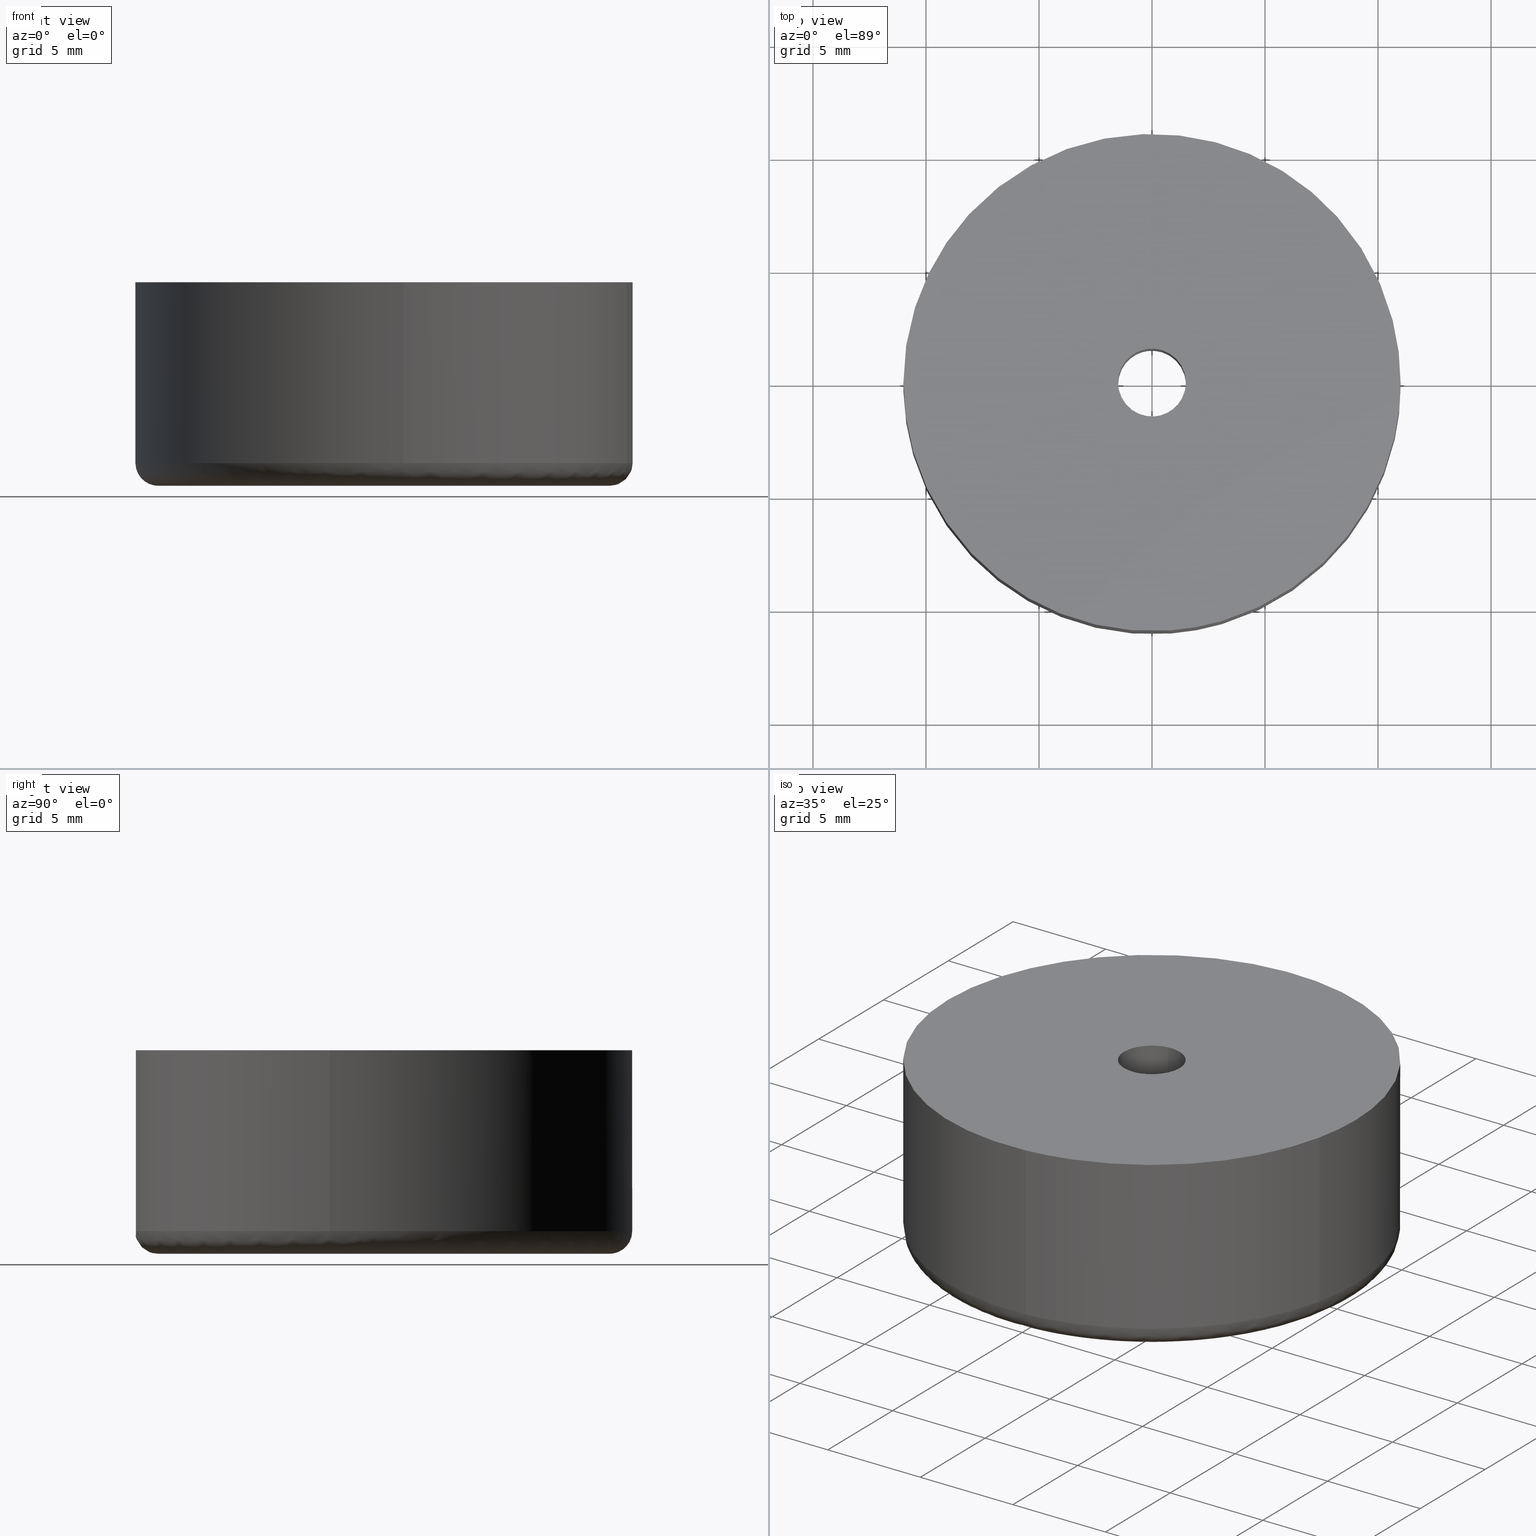
[diagram: canonical four-view strip — front | top / right | iso, engineering-drawing reading convention]
A machine part, canonical four-view strip (front | top / right | iso — engineering-drawing reading convention). The complete STEP part file that produces these views, byte-faithful:
ISO-10303-21;
HEADER;
/****************************************************************
 * Generated by software with PDE/Lib inside                    *
 * PDElib Version 4.4.1-0003, patched  Thursday August 19 11:58 *
 * International Technegroup Inc. (www.iti-oh.com)              *
 ****************************************************************/
FILE_DESCRIPTION((''),'2;1');
FILE_NAME('','2005-12-14T14:06:47',(''),(''),'','CADfix','');
FILE_SCHEMA(('AUTOMOTIVE_DESIGN'));
ENDSEC;
DATA;
#5=APPLICATION_CONTEXT('automotive design');
#6=APPLICATION_PROTOCOL_DEFINITION('Draft International Standard','automotive_design',1998,#5);
#7=PRODUCT_CONTEXT('None',#5,'mechanical');
#8=PRODUCT('rubber foot','','None',(#7));
#9=PRODUCT_RELATED_PRODUCT_CATEGORY('part','description',(#8));
#10=PRODUCT_DEFINITION_FORMATION('None','None',#8);
#11=PRODUCT_DEFINITION_CONTEXT('part definition',#5,'design');
#12=PRODUCT_DEFINITION('None','None',#10,#11);
#18=(NAMED_UNIT(*)PLANE_ANGLE_UNIT()SI_UNIT($,.RADIAN.));
#19=DIMENSIONAL_EXPONENTS(0.0,0.0,0.0,0.0,0.0,0.0,0.0);
#20=PLANE_ANGLE_MEASURE_WITH_UNIT(PLANE_ANGLE_MEASURE(0.017453292500000),#18);
#24=(CONVERSION_BASED_UNIT('DEGREE',#20)NAMED_UNIT(#19)PLANE_ANGLE_UNIT());
#28=(NAMED_UNIT(*)SI_UNIT($,.STERADIAN.)SOLID_ANGLE_UNIT());
#32=(LENGTH_UNIT()NAMED_UNIT(*)SI_UNIT(.MILLI.,.METRE.));
#34=UNCERTAINTY_MEASURE_WITH_UNIT(LENGTH_MEASURE(0.001000000000000),#32,'DISTANCE_ACCURACY_VALUE','');
#36=(GEOMETRIC_REPRESENTATION_CONTEXT(3)GLOBAL_UNCERTAINTY_ASSIGNED_CONTEXT((#34))GLOBAL_UNIT_ASSIGNED_CONTEXT((#24,#28,#32))REPRESENTATION_CONTEXT('None','None'));
#37=AXIS2_PLACEMENT_3D('',#38,#39,#40);
#38=CARTESIAN_POINT('',(0.0,0.0,0.0));
#39=DIRECTION('',(0.0,0.0,1.0));
#40=DIRECTION('',(1.0,0.0,0.0));
#41=ADVANCED_BREP_SHAPE_REPRESENTATION('',(#37,#849),#36);
#42=PRODUCT_DEFINITION_SHAPE('','',#12);
#43=SHAPE_DEFINITION_REPRESENTATION(#42,#41);
#44=CARTESIAN_POINT('',(10.750597686837729,-2.330096578054378,9.200000000002461));
#45=CARTESIAN_POINT('',(10.743133350859535,-2.363527617774746,9.200000000002461));
#46=CARTESIAN_POINT('',(8.964755347584941,-10.328472636191016,9.200000000002461));
#47=CARTESIAN_POINT('',(0.832066343852315,-10.968529141858580,9.200000000002461));
#48=CARTESIAN_POINT('',(0.801155071843279,-10.970961911725817,9.200000000002467));
#49=CARTESIAN_POINT('',(10.750597686837729,-2.330096578054378,0.794999999894772));
#50=CARTESIAN_POINT('',(10.743133350859535,-2.363527617774746,0.794999999894772));
#51=CARTESIAN_POINT('',(8.964755347584941,-10.328472636191016,0.794999999894772));
#52=CARTESIAN_POINT('',(0.832066343852315,-10.968529141858580,0.794999999894772));
#53=CARTESIAN_POINT('',(0.801155071843279,-10.970961911725817,0.794999999894773));
#61=(BOUNDED_SURFACE()B_SPLINE_SURFACE(2,1,((#44,#49),(#45,#50),(#46,#51),(#47,#52),(#48,#53)),.UNSPECIFIED.,.F.,.F.,.U.)B_SPLINE_SURFACE_WITH_KNOTS((3,1,1,3),(2,2),(0.0,0.072412327815061,14.553348290568170,14.625760497079630),(0.0,8.405000000107691),.UNSPECIFIED.)GEOMETRIC_REPRESENTATION_ITEM()RATIONAL_B_SPLINE_SURFACE(((0.907680205931852,0.907680205931852),(0.906977187955774,0.906977187955774),(0.765685424949238,0.765685424949238),(1.001171694663996,1.001171694663996),(1.002343389327991,1.002343389327991)))REPRESENTATION_ITEM('')SURFACE());
#62=CARTESIAN_POINT('',(10.735658999564700,-2.397003513767527,0.999999999999981));
#63=VERTEX_POINT('',#62);
#64=CARTESIAN_POINT('',(0.863043667407032,-10.966091173618230,1.000000000000017));
#65=VERTEX_POINT('',#64);
#66=CARTESIAN_POINT('',(10.735658999564698,-2.397003513767527,0.999999999999981));
#67=CARTESIAN_POINT('',(8.964759803320055,-10.328477032398068,1.0));
#68=CARTESIAN_POINT('',(0.863043667407032,-10.966091173618224,1.000000000000017));
#76=(BOUNDED_CURVE()B_SPLINE_CURVE(2,(#66,#67,#68),.UNSPECIFIED.,.F.,.U.)B_SPLINE_CURVE_WITH_KNOTS((3,3),(0.537286560370751,0.736331400453952),.UNSPECIFIED.)CURVE()GEOMETRIC_REPRESENTATION_ITEM()RATIONAL_B_SPLINE_CURVE((0.925662740296602,0.762027680026814,0.969723564491107))REPRESENTATION_ITEM(''));
#77=EDGE_CURVE('',#63,#65,#76,.T.);
#78=ORIENTED_EDGE('',*,*,#77,.F.);
#79=CARTESIAN_POINT('',(10.735658980247090,-2.397003600287159,8.999999999999901));
#80=VERTEX_POINT('',#79);
#81=CARTESIAN_POINT('',(10.735658980247090,-2.397003600287159,8.999999999999901));
#82=CARTESIAN_POINT('',(10.735658999564700,-2.397003513767527,0.999999999999981));
#83=QUASI_UNIFORM_CURVE('',1,(#81,#82),.UNSPECIFIED.,.F.,.U.);
#84=EDGE_CURVE('',#80,#63,#83,.T.);
#85=ORIENTED_EDGE('',*,*,#84,.F.);
#86=CARTESIAN_POINT('',(0.863043746158326,-10.966091167420460,8.999999999999901));
#87=VERTEX_POINT('',#86);
#88=CARTESIAN_POINT('',(10.735658980247091,-2.397003600287159,8.999999999999901));
#89=CARTESIAN_POINT('',(8.964759748317437,-10.328476978185243,8.999999999999901));
#90=CARTESIAN_POINT('',(0.863043746158326,-10.966091167420460,8.999999999999901));
#98=(BOUNDED_CURVE()B_SPLINE_CURVE(2,(#88,#89,#90),.UNSPECIFIED.,.F.,.U.)B_SPLINE_CURVE_WITH_KNOTS((3,3),(0.537286561689504,0.736331399222893),.UNSPECIFIED.)CURVE()GEOMETRIC_REPRESENTATION_ITEM()RATIONAL_B_SPLINE_CURVE((0.925662738128303,0.762027682414940,0.969723561921979))REPRESENTATION_ITEM(''));
#99=EDGE_CURVE('',#80,#87,#98,.T.);
#100=ORIENTED_EDGE('',*,*,#99,.T.);
#101=CARTESIAN_POINT('',(0.863043746158326,-10.966091167420460,8.999999999999901));
#102=CARTESIAN_POINT('',(0.863043667407032,-10.966091173618230,1.000000000000017));
#103=QUASI_UNIFORM_CURVE('',1,(#101,#102),.UNSPECIFIED.,.F.,.U.);
#104=EDGE_CURVE('',#87,#65,#103,.T.);
#105=ORIENTED_EDGE('',*,*,#104,.T.);
#106=EDGE_LOOP('',(#78,#85,#100,#105));
#107=FACE_OUTER_BOUND('',#106,.T.);
#108=ADVANCED_FACE('',(#107),#61,.T.);
#109=CARTESIAN_POINT('',(0.863050053006293,-10.966090671064400,9.200000000002463));
#110=CARTESIAN_POINT('',(-10.103040618058110,-11.829140724070699,9.200000000002463));
#111=CARTESIAN_POINT('',(-10.966090671064400,-0.863050053006293,9.200000000002463));
#112=CARTESIAN_POINT('',(-11.829140724070699,10.103040618058110,9.200000000002463));
#113=CARTESIAN_POINT('',(-0.863050053006293,10.966090671064400,9.200000000002463));
#114=CARTESIAN_POINT('',(10.103040618058110,11.829140724070699,9.200000000002463));
#115=CARTESIAN_POINT('',(10.966090671064400,0.863050053006293,9.200000000002463));
#116=CARTESIAN_POINT('',(11.095739003543983,-0.784288203182901,9.200000000002463));
#117=CARTESIAN_POINT('',(10.735657434362894,-2.397010523967008,9.200000000002461));
#118=CARTESIAN_POINT('',(0.863050053006293,-10.966090671064400,0.794999999894772));
#119=CARTESIAN_POINT('',(-10.103040618058110,-11.829140724070699,0.794999999894772));
#120=CARTESIAN_POINT('',(-10.966090671064400,-0.863050053006293,0.794999999894772));
#121=CARTESIAN_POINT('',(-11.829140724070699,10.103040618058110,0.794999999894772));
#122=CARTESIAN_POINT('',(-0.863050053006293,10.966090671064400,0.794999999894772));
#123=CARTESIAN_POINT('',(10.103040618058110,11.829140724070699,0.794999999894772));
#124=CARTESIAN_POINT('',(10.966090671064400,0.863050053006293,0.794999999894772));
#125=CARTESIAN_POINT('',(11.095739003543983,-0.784288203182901,0.794999999894772));
#126=CARTESIAN_POINT('',(10.735657434362894,-2.397010523967008,0.794999999894772));
#134=(BOUNDED_SURFACE()B_SPLINE_SURFACE(2,1,((#109,#118),(#110,#119),(#111,#120),(#112,#121),(#113,#122),(#114,#123),(#115,#124),(#116,#125),(#117,#126)),.UNSPECIFIED.,.F.,.F.,.U.)B_SPLINE_SURFACE_WITH_KNOTS((3,2,2,2,3),(2,2),(0.0,18.225396744416170,36.450793488832353,54.676190233248519,58.321269582131762),(0.0,8.405000000107691),.UNSPECIFIED.)GEOMETRIC_REPRESENTATION_ITEM()RATIONAL_B_SPLINE_SURFACE(((1.0,1.0),(0.707106781186548,0.707106781186548),(1.0,1.0),(0.707106781186548,0.707106781186548),(1.0,1.0),(0.707106781186548,0.707106781186548),(1.0,1.0),(0.941421356237310,0.941421356237310),(0.906274169979695,0.906274169979695)))REPRESENTATION_ITEM('')SURFACE());
#135=CARTESIAN_POINT('',(11.0,0.0,1.0));
#136=VERTEX_POINT('',#135);
#137=CARTESIAN_POINT('',(11.0,0.0,1.0));
#138=CARTESIAN_POINT('',(11.000000000000005,-1.213077489482777,1.0));
#139=CARTESIAN_POINT('',(10.735658999564697,-2.397003513767527,0.999999999999981));
#147=(BOUNDED_CURVE()B_SPLINE_CURVE(2,(#137,#138,#139),.UNSPECIFIED.,.F.,.U.)B_SPLINE_CURVE_WITH_KNOTS((3,3),(0.500000000000000,0.537286560370751),.UNSPECIFIED.)CURVE()GEOMETRIC_REPRESENTATION_ITEM()RATIONAL_B_SPLINE_CURVE((1.0,0.956316077258115,0.925662740296602))REPRESENTATION_ITEM(''));
#148=EDGE_CURVE('',#136,#63,#147,.T.);
#149=ORIENTED_EDGE('',*,*,#148,.F.);
#150=CARTESIAN_POINT('',(-0.276431049877462,10.996526082116279,0.999999999897399));
#151=VERTEX_POINT('',#150);
#152=CARTESIAN_POINT('',(-0.276431049877462,10.996526082116279,0.999999999897399));
#153=CARTESIAN_POINT('',(-0.138237353357926,11.000000000000004,1.0));
#154=CARTESIAN_POINT('',(0.0,11.0,1.0));
#155=CARTESIAN_POINT('',(11.0,11.0,1.0));
#156=CARTESIAN_POINT('',(11.0,0.0,1.0));
#164=(BOUNDED_CURVE()B_SPLINE_CURVE(2,(#152,#153,#154,#155,#156),.UNSPECIFIED.,.F.,.U.)B_SPLINE_CURVE_WITH_KNOTS((3,2,3),(0.245579891769784,0.250000000000000,0.500000000000000),.UNSPECIFIED.)CURVE()GEOMETRIC_REPRESENTATION_ITEM()RATIONAL_B_SPLINE_CURVE((0.989826157681522,0.994821521091792,1.0,0.707106781186548,1.0))REPRESENTATION_ITEM(''));
#165=EDGE_CURVE('',#151,#136,#164,.T.);
#166=ORIENTED_EDGE('',*,*,#165,.F.);
#167=CARTESIAN_POINT('',(-11.0,0.0,1.0));
#168=VERTEX_POINT('',#167);
#169=CARTESIAN_POINT('',(-11.0,0.0,1.0));
#170=CARTESIAN_POINT('',(-11.0,10.726956637985680,1.0));
#171=CARTESIAN_POINT('',(-0.276431049877462,10.996526082116279,0.999999999897399));
#179=(BOUNDED_CURVE()B_SPLINE_CURVE(2,(#169,#170,#171),.UNSPECIFIED.,.F.,.U.)B_SPLINE_CURVE_WITH_KNOTS((3,3),(0.0,0.245579891769784),.UNSPECIFIED.)CURVE()GEOMETRIC_REPRESENTATION_ITEM()RATIONAL_B_SPLINE_CURVE((1.0,0.712285260094755,0.989826157681522))REPRESENTATION_ITEM(''));
#180=EDGE_CURVE('',#168,#151,#179,.T.);
#181=ORIENTED_EDGE('',*,*,#180,.F.);
#182=CARTESIAN_POINT('',(-10.996526082116279,-0.276431049877210,0.999999999897420));
#183=VERTEX_POINT('',#182);
#184=CARTESIAN_POINT('',(-10.996526082116281,-0.276431049877210,0.999999999897420));
#185=CARTESIAN_POINT('',(-11.0,-0.138237353357674,1.0));
#186=CARTESIAN_POINT('',(-11.0,0.0,1.0));
#194=(BOUNDED_CURVE()B_SPLINE_CURVE(2,(#184,#185,#186),.UNSPECIFIED.,.F.,.U.)B_SPLINE_CURVE_WITH_KNOTS((3,3),(0.995579891769792,1.0),.UNSPECIFIED.)CURVE()GEOMETRIC_REPRESENTATION_ITEM()RATIONAL_B_SPLINE_CURVE((0.989826157681540,0.994821521091802,1.0))REPRESENTATION_ITEM(''));
#195=EDGE_CURVE('',#183,#168,#194,.T.);
#196=ORIENTED_EDGE('',*,*,#195,.F.);
#197=CARTESIAN_POINT('',(0.863043667407032,-10.966091173618224,1.000000000000017));
#198=CARTESIAN_POINT('',(0.432187969468142,-11.000000000000002,1.0));
#199=CARTESIAN_POINT('',(0.0,-11.0,1.0));
#200=CARTESIAN_POINT('',(-10.726956637986108,-11.000000000000004,1.0));
#201=CARTESIAN_POINT('',(-10.996526082116283,-0.276431049877210,0.999999999897420));
#209=(BOUNDED_CURVE()B_SPLINE_CURVE(2,(#197,#198,#199,#200,#201),.UNSPECIFIED.,.F.,.U.)B_SPLINE_CURVE_WITH_KNOTS((3,2,3),(0.736331400453952,0.750000000000000,0.995579891769791),.UNSPECIFIED.)CURVE()GEOMETRIC_REPRESENTATION_ITEM()RATIONAL_B_SPLINE_CURVE((0.969723564491107,0.983986239529144,1.0,0.712285260094747,0.989826157681538))REPRESENTATION_ITEM(''));
#210=EDGE_CURVE('',#65,#183,#209,.T.);
#211=ORIENTED_EDGE('',*,*,#210,.F.);
#212=ORIENTED_EDGE('',*,*,#104,.F.);
#213=CARTESIAN_POINT('',(-11.0,0.0,8.999999999999901));
#214=VERTEX_POINT('',#213);
#215=CARTESIAN_POINT('',(0.863043746158326,-10.966091167420460,8.999999999999901));
#216=CARTESIAN_POINT('',(0.432188009026516,-10.999999999999996,8.999999999999901));
#217=CARTESIAN_POINT('',(0.0,-11.0,8.999999999999901));
#218=CARTESIAN_POINT('',(-11.0,-11.0,8.999999999999901));
#219=CARTESIAN_POINT('',(-11.0,0.0,8.999999999999901));
#227=(BOUNDED_CURVE()B_SPLINE_CURVE(2,(#215,#216,#217,#218,#219),.UNSPECIFIED.,.F.,.U.)B_SPLINE_CURVE_WITH_KNOTS((3,2,3),(0.736331399222893,0.750000000000000,1.0),.UNSPECIFIED.)CURVE()GEOMETRIC_REPRESENTATION_ITEM()RATIONAL_B_SPLINE_CURVE((0.969723561921979,0.983986238086868,1.0,0.707106781186548,1.0))REPRESENTATION_ITEM(''));
#228=EDGE_CURVE('',#87,#214,#227,.T.);
#229=ORIENTED_EDGE('',*,*,#228,.T.);
#230=CARTESIAN_POINT('',(11.0,0.0,8.999999999999901));
#231=VERTEX_POINT('',#230);
#232=CARTESIAN_POINT('',(-11.0,0.0,8.999999999999901));
#233=CARTESIAN_POINT('',(-11.0,11.0,8.999999999999901));
#234=CARTESIAN_POINT('',(0.0,11.0,8.999999999999901));
#235=CARTESIAN_POINT('',(11.0,11.0,8.999999999999901));
#236=CARTESIAN_POINT('',(11.0,0.0,8.999999999999901));
#244=(BOUNDED_CURVE()B_SPLINE_CURVE(2,(#232,#233,#234,#235,#236),.UNSPECIFIED.,.F.,.U.)B_SPLINE_CURVE_WITH_KNOTS((3,2,3),(0.0,0.250000000000000,0.500000000000000),.UNSPECIFIED.)CURVE()GEOMETRIC_REPRESENTATION_ITEM()RATIONAL_B_SPLINE_CURVE((1.0,0.707106781186548,1.0,0.707106781186548,1.0))REPRESENTATION_ITEM(''));
#245=EDGE_CURVE('',#214,#231,#244,.T.);
#246=ORIENTED_EDGE('',*,*,#245,.T.);
#247=CARTESIAN_POINT('',(11.0,0.0,8.999999999999901));
#248=CARTESIAN_POINT('',(11.000000000000002,-1.213077534346824,8.999999999999901));
#249=CARTESIAN_POINT('',(10.735658980247091,-2.397003600287159,8.999999999999901));
#257=(BOUNDED_CURVE()B_SPLINE_CURVE(2,(#247,#248,#249),.UNSPECIFIED.,.F.,.U.)B_SPLINE_CURVE_WITH_KNOTS((3,3),(0.500000000000000,0.537286561689504),.UNSPECIFIED.)CURVE()GEOMETRIC_REPRESENTATION_ITEM()RATIONAL_B_SPLINE_CURVE((1.0,0.956316075713099,0.925662738128303))REPRESENTATION_ITEM(''));
#258=EDGE_CURVE('',#231,#80,#257,.T.);
#259=ORIENTED_EDGE('',*,*,#258,.T.);
#260=ORIENTED_EDGE('',*,*,#84,.T.);
#261=EDGE_LOOP('',(#149,#166,#181,#196,#211,#212,#229,#246,#259,#260));
#262=FACE_OUTER_BOUND('',#261,.T.);
#263=ADVANCED_FACE('',(#262),#134,.T.);
#264=CARTESIAN_POINT('',(-0.177051351985138,1.489514289545500,9.137499999999902));
#265=CARTESIAN_POINT('',(-0.134422092956966,1.494581423172908,9.137499999999900));
#266=CARTESIAN_POINT('',(-0.091572809302285,1.497202197632800,9.137499999999900));
#267=CARTESIAN_POINT('',(1.405629388330515,1.588775006935085,9.137499999999900));
#268=CARTESIAN_POINT('',(1.497202197632800,0.091572809302285,9.137499999999900));
#269=CARTESIAN_POINT('',(1.588775006935085,-1.405629388330515,9.137499999999900));
#270=CARTESIAN_POINT('',(0.091572809302285,-1.497202197632800,9.137499999999900));
#271=CARTESIAN_POINT('',(-0.177051351985138,1.489514289545500,3.359062500000003));
#272=CARTESIAN_POINT('',(-0.134422092956966,1.494581423172908,3.359062500000003));
#273=CARTESIAN_POINT('',(-0.091572809302285,1.497202197632800,3.359062500000003));
#274=CARTESIAN_POINT('',(1.405629388330515,1.588775006935085,3.359062500000004));
#275=CARTESIAN_POINT('',(1.497202197632800,0.091572809302285,3.359062500000003));
#276=CARTESIAN_POINT('',(1.588775006935085,-1.405629388330515,3.359062500000004));
#277=CARTESIAN_POINT('',(0.091572809302285,-1.497202197632800,3.359062500000003));
#285=(BOUNDED_SURFACE()B_SPLINE_SURFACE(2,1,((#264,#271),(#265,#272),(#266,#273),(#267,#274),(#268,#275),(#269,#276),(#270,#277)),.UNSPECIFIED.,.F.,.F.,.U.)B_SPLINE_SURFACE_WITH_KNOTS((3,2,2,3),(2,2),(3.078760800517997,3.141592653589793,4.712388980384690,6.283185307179586),(0.0,5.778437499999899),.UNSPECIFIED.)GEOMETRIC_REPRESENTATION_ITEM()RATIONAL_B_SPLINE_SURFACE(((0.977505800795127,0.977505800795127),(0.988284271247462,0.988284271247462),(1.0,1.0),(0.707106781186548,0.707106781186548),(1.0,1.0),(0.707106781186548,0.707106781186548),(1.0,1.0)))REPRESENTATION_ITEM('')SURFACE());
#286=CARTESIAN_POINT('',(-0.177049153689293,1.489514550842993,8.999999999999917));
#287=VERTEX_POINT('',#286);
#288=CARTESIAN_POINT('',(1.500000000000000,0.0,8.999999999999901));
#289=VERTEX_POINT('',#288);
#290=CARTESIAN_POINT('',(-0.177049153689293,1.489514550842993,8.999999999999917));
#291=CARTESIAN_POINT('',(-0.088835068710135,1.500000000000000,8.999999999999901));
#292=CARTESIAN_POINT('',(0.0,1.500000000000000,8.999999999999901));
#293=CARTESIAN_POINT('',(1.500000000000000,1.500000000000000,8.999999999999901));
#294=CARTESIAN_POINT('',(1.500000000000000,0.0,8.999999999999901));
#302=(BOUNDED_CURVE()B_SPLINE_CURVE(2,(#290,#291,#292,#293,#294),.UNSPECIFIED.,.F.,.U.)B_SPLINE_CURVE_WITH_KNOTS((3,2,3),(0.229562722938678,0.250000000000000,0.500000000000000),.UNSPECIFIED.)CURVE()GEOMETRIC_REPRESENTATION_ITEM()RATIONAL_B_SPLINE_CURVE((0.956027243067822,0.976056240550908,1.0,0.707106781186548,1.0))REPRESENTATION_ITEM(''));
#303=EDGE_CURVE('',#287,#289,#302,.T.);
#304=ORIENTED_EDGE('',*,*,#303,.F.);
#305=CARTESIAN_POINT('',(-0.177049180233215,1.489514547687925,3.500000000000001));
#306=VERTEX_POINT('',#305);
#307=CARTESIAN_POINT('',(-0.177049153689293,1.489514550842993,8.999999999999917));
#308=CARTESIAN_POINT('',(-0.177049180233215,1.489514547687925,3.500000000000001));
#309=QUASI_UNIFORM_CURVE('',1,(#307,#308),.UNSPECIFIED.,.F.,.U.);
#310=EDGE_CURVE('',#287,#306,#309,.T.);
#311=ORIENTED_EDGE('',*,*,#310,.T.);
#312=CARTESIAN_POINT('',(1.500000000000000,0.0,3.500000000000000));
#313=VERTEX_POINT('',#312);
#314=CARTESIAN_POINT('',(-0.177049180233215,1.489514547687925,3.500000000000000));
#315=CARTESIAN_POINT('',(-0.088835082122399,1.500000000000000,3.500000000000000));
#316=CARTESIAN_POINT('',(0.0,1.500000000000000,3.500000000000000));
#317=CARTESIAN_POINT('',(1.500000000000000,1.500000000000000,3.499999999999999));
#318=CARTESIAN_POINT('',(1.500000000000000,0.0,3.500000000000000));
#326=(BOUNDED_CURVE()B_SPLINE_CURVE(2,(#314,#315,#316,#317,#318),.UNSPECIFIED.,.F.,.U.)B_SPLINE_CURVE_WITH_KNOTS((3,2,3),(0.229562719926951,0.250000000000000,0.500000000000000),.UNSPECIFIED.)CURVE()GEOMETRIC_REPRESENTATION_ITEM()RATIONAL_B_SPLINE_CURVE((0.956027237164700,0.976056237022451,1.0,0.707106781186548,1.0))REPRESENTATION_ITEM(''));
#327=EDGE_CURVE('',#306,#313,#326,.T.);
#328=ORIENTED_EDGE('',*,*,#327,.T.);
#329=CARTESIAN_POINT('',(0.091572809312635,-1.497202197632167,3.500000000000000));
#330=VERTEX_POINT('',#329);
#331=CARTESIAN_POINT('',(1.500000000000000,0.0,3.500000000000000));
#332=CARTESIAN_POINT('',(1.500000000000001,-1.411059100338994,3.500000000000000));
#333=CARTESIAN_POINT('',(0.091572809312635,-1.497202197632167,3.500000000000000));
#341=(BOUNDED_CURVE()B_SPLINE_CURVE(2,(#331,#332,#333),.UNSPECIFIED.,.F.,.U.)B_SPLINE_CURVE_WITH_KNOTS((3,3),(0.500000000000000,0.739332962239582),.UNSPECIFIED.)CURVE()GEOMETRIC_REPRESENTATION_ITEM()RATIONAL_B_SPLINE_CURVE((1.0,0.719603993285961,0.976072041668088))REPRESENTATION_ITEM(''));
#342=EDGE_CURVE('',#313,#330,#341,.T.);
#343=ORIENTED_EDGE('',*,*,#342,.T.);
#344=CARTESIAN_POINT('',(0.091572809312635,-1.497202197632167,8.999999999999901));
#345=VERTEX_POINT('',#344);
#346=CARTESIAN_POINT('',(0.091572809312635,-1.497202197632167,8.999999999999901));
#347=CARTESIAN_POINT('',(0.091572809312635,-1.497202197632167,3.500000000000000));
#348=QUASI_UNIFORM_CURVE('',1,(#346,#347),.UNSPECIFIED.,.F.,.U.);
#349=EDGE_CURVE('',#345,#330,#348,.T.);
#350=ORIENTED_EDGE('',*,*,#349,.F.);
#351=CARTESIAN_POINT('',(1.500000000000000,0.0,8.999999999999901));
#352=CARTESIAN_POINT('',(1.500000000000001,-1.411059100338994,8.999999999999902));
#353=CARTESIAN_POINT('',(0.091572809312635,-1.497202197632167,8.999999999999901));
#361=(BOUNDED_CURVE()B_SPLINE_CURVE(2,(#351,#352,#353),.UNSPECIFIED.,.F.,.U.)B_SPLINE_CURVE_WITH_KNOTS((3,3),(0.500000000000000,0.739332962239582),.UNSPECIFIED.)CURVE()GEOMETRIC_REPRESENTATION_ITEM()RATIONAL_B_SPLINE_CURVE((1.0,0.719603993285961,0.976072041668088))REPRESENTATION_ITEM(''));
#362=EDGE_CURVE('',#289,#345,#361,.T.);
#363=ORIENTED_EDGE('',*,*,#362,.F.);
#364=EDGE_LOOP('',(#304,#311,#328,#343,#350,#363));
#365=FACE_OUTER_BOUND('',#364,.T.);
#366=ADVANCED_FACE('',(#365),#285,.F.);
#367=CARTESIAN_POINT('',(0.112204542655969,-1.495940306762643,9.137499999999898));
#368=CARTESIAN_POINT('',(0.101918201429846,-1.496569446343794,9.137499999999902));
#369=CARTESIAN_POINT('',(-1.405629388330515,-1.588775006935085,9.137499999999900));
#370=CARTESIAN_POINT('',(-1.497202197632800,-0.091572809302285,9.137499999999900));
#371=CARTESIAN_POINT('',(-1.583679295098791,1.322315236259252,9.137499999999900));
#372=CARTESIAN_POINT('',(-0.166519371512230,1.490766175072813,9.137499999999902));
#373=CARTESIAN_POINT('',(-0.156043995274049,1.492011332328800,9.137499999999902));
#374=CARTESIAN_POINT('',(0.112204542655969,-1.495940306762643,3.359062500000003));
#375=CARTESIAN_POINT('',(0.101918201429846,-1.496569446343794,3.359062500000004));
#376=CARTESIAN_POINT('',(-1.405629388330515,-1.588775006935085,3.359062500000004));
#377=CARTESIAN_POINT('',(-1.497202197632800,-0.091572809302285,3.359062500000003));
#378=CARTESIAN_POINT('',(-1.583679295098791,1.322315236259252,3.359062500000004));
#379=CARTESIAN_POINT('',(-0.166519371512230,1.490766175072813,3.359062500000003));
#380=CARTESIAN_POINT('',(-0.156043995274049,1.492011332328800,3.359062500000002));
#388=(BOUNDED_SURFACE()B_SPLINE_SURFACE(2,1,((#367,#374),(#368,#375),(#369,#376),(#370,#377),(#371,#378),(#372,#379),(#373,#380)),.UNSPECIFIED.,.F.,.F.,.U.)B_SPLINE_SURFACE_WITH_KNOTS((3,1,2,1,3),(2,2),(0.0,0.024355769611618,2.509637143850187,4.895507263119215,4.919865567971703),(0.0,5.778437499999900),.UNSPECIFIED.)GEOMETRIC_REPRESENTATION_ITEM()RATIONAL_B_SPLINE_SURFACE(((1.005740709951131,1.005740709951131),(1.002870354975565,1.002870354975565),(0.707106781186548,0.707106781186548),(1.0,1.0),(0.718822509939086,0.718822509939086),(0.980146802251169,0.980146802251169),(0.982787803707211,0.982787803707211)))REPRESENTATION_ITEM('')SURFACE());
#389=CARTESIAN_POINT('',(-1.500000000000000,0.0,8.999999999999901));
#390=VERTEX_POINT('',#389);
#391=CARTESIAN_POINT('',(-1.500000000000000,0.0,8.999999999999901));
#392=CARTESIAN_POINT('',(-1.500000000000001,1.332263768984680,8.999999999999901));
#393=CARTESIAN_POINT('',(-0.177049153689293,1.489514550842993,8.999999999999917));
#401=(BOUNDED_CURVE()B_SPLINE_CURVE(2,(#391,#392,#393),.UNSPECIFIED.,.F.,.U.)B_SPLINE_CURVE_WITH_KNOTS((3,3),(0.0,0.229562722938678),.UNSPECIFIED.)CURVE()GEOMETRIC_REPRESENTATION_ITEM()RATIONAL_B_SPLINE_CURVE((1.0,0.731050540635640,0.956027243067822))REPRESENTATION_ITEM(''));
#402=EDGE_CURVE('',#390,#287,#401,.T.);
#403=ORIENTED_EDGE('',*,*,#402,.F.);
#404=CARTESIAN_POINT('',(0.091572809312635,-1.497202197632167,8.999999999999901));
#405=CARTESIAN_POINT('',(0.045829144958262,-1.500000000000001,8.999999999999901));
#406=CARTESIAN_POINT('',(0.0,-1.500000000000000,8.999999999999901));
#407=CARTESIAN_POINT('',(-1.500000000000000,-1.500000000000000,8.999999999999901));
#408=CARTESIAN_POINT('',(-1.500000000000000,0.0,8.999999999999901));
#416=(BOUNDED_CURVE()B_SPLINE_CURVE(2,(#404,#405,#406,#407,#408),.UNSPECIFIED.,.F.,.U.)B_SPLINE_CURVE_WITH_KNOTS((3,2,3),(0.739332962239583,0.750000000000000,1.0),.UNSPECIFIED.)CURVE()GEOMETRIC_REPRESENTATION_ITEM()RATIONAL_B_SPLINE_CURVE((0.976072041668089,0.987502787900587,1.0,0.707106781186548,1.0))REPRESENTATION_ITEM(''));
#417=EDGE_CURVE('',#345,#390,#416,.T.);
#418=ORIENTED_EDGE('',*,*,#417,.F.);
#419=ORIENTED_EDGE('',*,*,#349,.T.);
#420=CARTESIAN_POINT('',(-1.500000000000000,0.0,3.500000000000000));
#421=VERTEX_POINT('',#420);
#422=CARTESIAN_POINT('',(0.091572809312635,-1.497202197632167,3.500000000000000));
#423=CARTESIAN_POINT('',(0.045829144958262,-1.500000000000001,3.500000000000000));
#424=CARTESIAN_POINT('',(0.0,-1.500000000000000,3.500000000000000));
#425=CARTESIAN_POINT('',(-1.500000000000000,-1.500000000000000,3.499999999999999));
#426=CARTESIAN_POINT('',(-1.500000000000000,0.0,3.500000000000000));
#434=(BOUNDED_CURVE()B_SPLINE_CURVE(2,(#422,#423,#424,#425,#426),.UNSPECIFIED.,.F.,.U.)B_SPLINE_CURVE_WITH_KNOTS((3,2,3),(0.739332962239583,0.750000000000000,1.0),.UNSPECIFIED.)CURVE()GEOMETRIC_REPRESENTATION_ITEM()RATIONAL_B_SPLINE_CURVE((0.976072041668089,0.987502787900587,1.0,0.707106781186548,1.0))REPRESENTATION_ITEM(''));
#435=EDGE_CURVE('',#330,#421,#434,.T.);
#436=ORIENTED_EDGE('',*,*,#435,.T.);
#437=CARTESIAN_POINT('',(-1.500000000000000,0.0,3.500000000000000));
#438=CARTESIAN_POINT('',(-1.500000000000000,1.332263745075924,3.500000000000000));
#439=CARTESIAN_POINT('',(-0.177049180233215,1.489514547687925,3.500000000000000));
#447=(BOUNDED_CURVE()B_SPLINE_CURVE(2,(#437,#438,#439),.UNSPECIFIED.,.F.,.U.)B_SPLINE_CURVE_WITH_KNOTS((3,3),(0.0,0.229562719926951),.UNSPECIFIED.)CURVE()GEOMETRIC_REPRESENTATION_ITEM()RATIONAL_B_SPLINE_CURVE((1.0,0.731050544164097,0.956027237164700))REPRESENTATION_ITEM(''));
#448=EDGE_CURVE('',#421,#306,#447,.T.);
#449=ORIENTED_EDGE('',*,*,#448,.T.);
#450=ORIENTED_EDGE('',*,*,#310,.F.);
#451=EDGE_LOOP('',(#403,#418,#419,#436,#449,#450));
#452=FACE_OUTER_BOUND('',#451,.T.);
#453=ADVANCED_FACE('',(#452),#388,.F.);
#454=CARTESIAN_POINT('',(-0.531081981653830,3.965031593577629,3.587500000000001));
#455=CARTESIAN_POINT('',(-0.501526358987366,3.968544727347870,3.587500000000000));
#456=CARTESIAN_POINT('',(-0.358458914551911,3.985550461794422,3.587500000000000));
#457=CARTESIAN_POINT('',(-0.244194158139428,3.992539193687467,3.587500000000000));
#458=CARTESIAN_POINT('',(3.748345035548039,4.236733351826894,3.587500000000001));
#459=CARTESIAN_POINT('',(3.992539193687467,0.244194158139428,3.587500000000000));
#460=CARTESIAN_POINT('',(4.236733351826894,-3.748345035548039,3.587500000000001));
#461=CARTESIAN_POINT('',(0.215480847990749,-3.994295374969354,3.587500000000000));
#462=CARTESIAN_POINT('',(0.186938098884701,-3.996041124290977,3.587499999999999));
#463=CARTESIAN_POINT('',(-0.531081981653830,3.965031593577629,-0.089687500000000));
#464=CARTESIAN_POINT('',(-0.501526358987366,3.968544727347870,-0.089687500000000));
#465=CARTESIAN_POINT('',(-0.358458914551911,3.985550461794422,-0.089687500000000));
#466=CARTESIAN_POINT('',(-0.244194158139428,3.992539193687467,-0.089687500000000));
#467=CARTESIAN_POINT('',(3.748345035548039,4.236733351826894,-0.089687500000000));
#468=CARTESIAN_POINT('',(3.992539193687467,0.244194158139428,-0.089687500000000));
#469=CARTESIAN_POINT('',(4.236733351826894,-3.748345035548039,-0.089687500000000));
#470=CARTESIAN_POINT('',(0.215480847990749,-3.994295374969354,-0.089687500000000));
#471=CARTESIAN_POINT('',(0.186938098884701,-3.996041124290977,-0.089687500000000));
#479=(BOUNDED_SURFACE()B_SPLINE_SURFACE(2,1,((#454,#463),(#455,#464),(#456,#465),(#457,#466),(#458,#467),(#459,#468),(#460,#469),(#461,#470),(#462,#471)),.UNSPECIFIED.,.F.,.F.,.U.)B_SPLINE_SURFACE_WITH_KNOTS((3,1,2,2,1,3),(2,2),(0.0,0.067597935587385,0.332694615506166,6.960111613475685,13.587528611445210,13.655135200790710),(0.0,3.677187500000001),.UNSPECIFIED.)GEOMETRIC_REPRESENTATION_ITEM()RATIONAL_B_SPLINE_SURFACE(((0.972008920550601,0.972008920550601),(0.974757360672864,0.974757360672864),(0.988284271247462,0.988284271247462),(1.0,1.0),(0.707106781186548,0.707106781186548),(1.0,1.0),(0.707106781186548,0.707106781186548),(1.002987817361194,1.002987817361194),(1.005975634722388,1.005975634722388)))REPRESENTATION_ITEM('')SURFACE());
#480=CARTESIAN_POINT('',(-0.472135409144780,3.972038287256218,-7.780033E-015));
#481=VERTEX_POINT('',#480);
#482=CARTESIAN_POINT('',(4.0,0.0,0.0));
#483=VERTEX_POINT('',#482);
#484=CARTESIAN_POINT('',(-0.472135409144780,3.972038287256219,-7.780033E-015));
#485=CARTESIAN_POINT('',(-0.236895705781812,4.000000000000000,0.0));
#486=CARTESIAN_POINT('',(0.0,4.0,0.0));
#487=CARTESIAN_POINT('',(4.000000000000000,4.000000000000000,0.0));
#488=CARTESIAN_POINT('',(4.0,0.0,0.0));
#496=(BOUNDED_CURVE()B_SPLINE_CURVE(2,(#484,#485,#486,#487,#488),.UNSPECIFIED.,.F.,.U.)B_SPLINE_CURVE_WITH_KNOTS((3,2,3),(0.229562538592431,0.250000000000000,0.500000000000000),.UNSPECIFIED.)CURVE()GEOMETRIC_REPRESENTATION_ITEM()RATIONAL_B_SPLINE_CURVE((0.956026881741091,0.976056024575846,1.0,0.707106781186548,1.0))REPRESENTATION_ITEM(''));
#497=EDGE_CURVE('',#481,#483,#496,.T.);
#498=ORIENTED_EDGE('',*,*,#497,.T.);
#499=CARTESIAN_POINT('',(0.244188269697965,-3.992539553831259,-5.921652E-014));
#500=VERTEX_POINT('',#499);
#501=CARTESIAN_POINT('',(4.0,0.0,0.0));
#502=CARTESIAN_POINT('',(4.0,-3.762829827640497,0.0));
#503=CARTESIAN_POINT('',(0.244188269697965,-3.992539553831259,-5.921652E-014));
#511=(BOUNDED_CURVE()B_SPLINE_CURVE(2,(#501,#502,#503),.UNSPECIFIED.,.F.,.U.)B_SPLINE_CURVE_WITH_KNOTS((3,3),(0.500000000000000,0.739333216724596),.UNSPECIFIED.)CURVE()GEOMETRIC_REPRESENTATION_ITEM()RATIONAL_B_SPLINE_CURVE((1.0,0.719603695138222,0.976072587078522))REPRESENTATION_ITEM(''));
#512=EDGE_CURVE('',#483,#500,#511,.T.);
#513=ORIENTED_EDGE('',*,*,#512,.T.);
#514=CARTESIAN_POINT('',(0.244188342415201,-3.992539549383896,3.500000000000000));
#515=VERTEX_POINT('',#514);
#516=CARTESIAN_POINT('',(0.244188342415201,-3.992539549383896,3.500000000000000));
#517=CARTESIAN_POINT('',(0.244188269697965,-3.992539553831259,-5.921652E-014));
#518=QUASI_UNIFORM_CURVE('',1,(#516,#517),.UNSPECIFIED.,.F.,.U.);
#519=EDGE_CURVE('',#515,#500,#518,.T.);
#520=ORIENTED_EDGE('',*,*,#519,.F.);
#521=CARTESIAN_POINT('',(4.0,0.0,3.500000000000000));
#522=VERTEX_POINT('',#521);
#523=CARTESIAN_POINT('',(4.0,0.0,3.500000000000000));
#524=CARTESIAN_POINT('',(4.000000000000001,-3.762829758978972,3.500000000000000));
#525=CARTESIAN_POINT('',(0.244188342415201,-3.992539549383895,3.500000000000000));
#533=(BOUNDED_CURVE()B_SPLINE_CURVE(2,(#523,#524,#525),.UNSPECIFIED.,.F.,.U.)B_SPLINE_CURVE_WITH_KNOTS((3,3),(0.500000000000000,0.739333213581951),.UNSPECIFIED.)CURVE()GEOMETRIC_REPRESENTATION_ITEM()RATIONAL_B_SPLINE_CURVE((1.0,0.719603698820059,0.976072580343222))REPRESENTATION_ITEM(''));
#534=EDGE_CURVE('',#522,#515,#533,.T.);
#535=ORIENTED_EDGE('',*,*,#534,.F.);
#536=CARTESIAN_POINT('',(-0.472135428042880,3.972038285009908,3.500000000000000));
#537=VERTEX_POINT('',#536);
#538=CARTESIAN_POINT('',(-0.472135428042880,3.972038285009907,3.500000000000000));
#539=CARTESIAN_POINT('',(-0.236895715330755,4.0,3.500000000000000));
#540=CARTESIAN_POINT('',(0.0,4.0,3.500000000000000));
#541=CARTESIAN_POINT('',(4.000000000000000,4.000000000000000,3.499999999999999));
#542=CARTESIAN_POINT('',(4.0,0.0,3.500000000000000));
#550=(BOUNDED_CURVE()B_SPLINE_CURVE(2,(#538,#539,#540,#541,#542),.UNSPECIFIED.,.F.,.U.)B_SPLINE_CURVE_WITH_KNOTS((3,2,3),(0.229562537788350,0.250000000000000,0.500000000000000),.UNSPECIFIED.)CURVE()GEOMETRIC_REPRESENTATION_ITEM()RATIONAL_B_SPLINE_CURVE((0.956026880165058,0.976056023633806,1.0,0.707106781186548,1.0))REPRESENTATION_ITEM(''));
#551=EDGE_CURVE('',#537,#522,#550,.T.);
#552=ORIENTED_EDGE('',*,*,#551,.F.);
#553=CARTESIAN_POINT('',(-0.472135428042880,3.972038285009908,3.500000000000000));
#554=CARTESIAN_POINT('',(-0.472135409144780,3.972038287256218,-7.780033E-015));
#555=QUASI_UNIFORM_CURVE('',1,(#553,#554),.UNSPECIFIED.,.F.,.U.);
#556=EDGE_CURVE('',#537,#481,#555,.T.);
#557=ORIENTED_EDGE('',*,*,#556,.T.);
#558=EDGE_LOOP('',(#498,#513,#520,#535,#552,#557));
#559=FACE_OUTER_BOUND('',#558,.T.);
#560=ADVANCED_FACE('',(#559),#479,.F.);
#561=CARTESIAN_POINT('',(0.244194158139428,-3.992539193687467,3.587500000000000));
#562=CARTESIAN_POINT('',(-3.748345035548039,-4.236733351826894,3.587500000000001));
#563=CARTESIAN_POINT('',(-3.992539193687467,-0.244194158139428,3.587500000000000));
#564=CARTESIAN_POINT('',(-4.223144786930110,3.526173963358004,3.587500000000000));
#565=CARTESIAN_POINT('',(-0.472136938627034,3.972038105454666,3.587500000000001));
#566=CARTESIAN_POINT('',(0.244194158139428,-3.992539193687467,-0.089687500000000));
#567=CARTESIAN_POINT('',(-3.748345035548039,-4.236733351826894,-0.089687500000000));
#568=CARTESIAN_POINT('',(-3.992539193687467,-0.244194158139428,-0.089687500000000));
#569=CARTESIAN_POINT('',(-4.223144786930110,3.526173963358004,-0.089687500000000));
#570=CARTESIAN_POINT('',(-0.472136938627034,3.972038105454666,-0.089687500000000));
#578=(BOUNDED_SURFACE()B_SPLINE_SURFACE(2,1,((#561,#566),(#562,#567),(#563,#568),(#564,#569),(#565,#570)),.UNSPECIFIED.,.F.,.F.,.U.)B_SPLINE_SURFACE_WITH_KNOTS((3,2,3),(2,2),(0.0,6.627416997969518,12.989737316020260),(0.0,3.677187500000001),.UNSPECIFIED.)GEOMETRIC_REPRESENTATION_ITEM()RATIONAL_B_SPLINE_SURFACE(((1.0,1.0),(0.707106781186548,0.707106781186548),(1.0,1.0),(0.718822509939086,0.718822509939086),(0.977505800795127,0.977505800795127)))REPRESENTATION_ITEM('')SURFACE());
#579=CARTESIAN_POINT('',(-4.0,0.0,0.0));
#580=VERTEX_POINT('',#579);
#581=CARTESIAN_POINT('',(-4.0,0.0,0.0));
#582=CARTESIAN_POINT('',(-4.0,3.552699481446219,0.0));
#583=CARTESIAN_POINT('',(-0.472135409144780,3.972038287256219,-7.780033E-015));
#591=(BOUNDED_CURVE()B_SPLINE_CURVE(2,(#581,#582,#583),.UNSPECIFIED.,.F.,.U.)B_SPLINE_CURVE_WITH_KNOTS((3,3),(0.0,0.229562538592431),.UNSPECIFIED.)CURVE()GEOMETRIC_REPRESENTATION_ITEM()RATIONAL_B_SPLINE_CURVE((1.0,0.731050756610702,0.956026881741091))REPRESENTATION_ITEM(''));
#592=EDGE_CURVE('',#580,#481,#591,.T.);
#593=ORIENTED_EDGE('',*,*,#592,.T.);
#594=ORIENTED_EDGE('',*,*,#556,.F.);
#595=CARTESIAN_POINT('',(-4.0,0.0,3.500000000000000));
#596=VERTEX_POINT('',#595);
#597=CARTESIAN_POINT('',(-4.0,0.0,3.500000000000000));
#598=CARTESIAN_POINT('',(-4.0,3.552699464424252,3.500000000000000));
#599=CARTESIAN_POINT('',(-0.472135428042880,3.972038285009907,3.500000000000000));
#607=(BOUNDED_CURVE()B_SPLINE_CURVE(2,(#597,#598,#599),.UNSPECIFIED.,.F.,.U.)B_SPLINE_CURVE_WITH_KNOTS((3,3),(0.0,0.229562537788350),.UNSPECIFIED.)CURVE()GEOMETRIC_REPRESENTATION_ITEM()RATIONAL_B_SPLINE_CURVE((1.0,0.731050757552741,0.956026880165058))REPRESENTATION_ITEM(''));
#608=EDGE_CURVE('',#596,#537,#607,.T.);
#609=ORIENTED_EDGE('',*,*,#608,.F.);
#610=CARTESIAN_POINT('',(0.244188342415201,-3.992539549383895,3.500000000000000));
#611=CARTESIAN_POINT('',(0.122208137179204,-4.000000000000001,3.500000000000000));
#612=CARTESIAN_POINT('',(0.0,-4.0,3.500000000000000));
#613=CARTESIAN_POINT('',(-4.000000000000000,-4.000000000000000,3.499999999999999));
#614=CARTESIAN_POINT('',(-4.0,0.0,3.500000000000000));
#622=(BOUNDED_CURVE()B_SPLINE_CURVE(2,(#610,#611,#612,#613,#614),.UNSPECIFIED.,.F.,.U.)B_SPLINE_CURVE_WITH_KNOTS((3,2,3),(0.739333213581951,0.750000000000000,1.0),.UNSPECIFIED.)CURVE()GEOMETRIC_REPRESENTATION_ITEM()RATIONAL_B_SPLINE_CURVE((0.976072580343222,0.987503082366489,1.0,0.707106781186548,1.0))REPRESENTATION_ITEM(''));
#623=EDGE_CURVE('',#515,#596,#622,.T.);
#624=ORIENTED_EDGE('',*,*,#623,.F.);
#625=ORIENTED_EDGE('',*,*,#519,.T.);
#626=CARTESIAN_POINT('',(0.244188269697965,-3.992539553831259,-5.921652E-014));
#627=CARTESIAN_POINT('',(0.122208100718648,-4.000000000000001,0.0));
#628=CARTESIAN_POINT('',(0.0,-4.0,0.0));
#629=CARTESIAN_POINT('',(-4.000000000000000,-4.000000000000000,0.0));
#630=CARTESIAN_POINT('',(-4.0,0.0,0.0));
#638=(BOUNDED_CURVE()B_SPLINE_CURVE(2,(#626,#627,#628,#629,#630),.UNSPECIFIED.,.F.,.U.)B_SPLINE_CURVE_WITH_KNOTS((3,2,3),(0.739333216724596,0.750000000000000,1.0),.UNSPECIFIED.)CURVE()GEOMETRIC_REPRESENTATION_ITEM()RATIONAL_B_SPLINE_CURVE((0.976072587078522,0.987503086048325,1.0,0.707106781186548,1.0))REPRESENTATION_ITEM(''));
#639=EDGE_CURVE('',#500,#580,#638,.T.);
#640=ORIENTED_EDGE('',*,*,#639,.T.);
#641=EDGE_LOOP('',(#593,#594,#609,#624,#625,#640));
#642=FACE_OUTER_BOUND('',#641,.T.);
#643=ADVANCED_FACE('',(#642),#578,.F.);
#644=CARTESIAN_POINT('',(-0.276369890915477,10.994093156753253,1.069724206937739));
#645=CARTESIAN_POINT('',(10.717723265837780,11.270463047668732,1.069724206937739));
#646=CARTESIAN_POINT('',(10.994093156753253,0.276369890915478,1.069724206937739));
#647=CARTESIAN_POINT('',(11.270463047668734,-10.717723265837776,1.069724206937739));
#648=CARTESIAN_POINT('',(0.276369890915481,-10.994093156753253,1.069724206937739));
#649=CARTESIAN_POINT('',(-10.717723265837776,-11.270463047668734,1.069724206937739));
#650=CARTESIAN_POINT('',(-10.994093156753253,-0.276369890915481,1.069724206937739));
#651=CARTESIAN_POINT('',(-0.278384645946548,11.074240832848719,-0.077336226805050));
#652=CARTESIAN_POINT('',(10.795856186902176,11.352625478795273,-0.077336226805050));
#653=CARTESIAN_POINT('',(11.074240832848719,0.278384645946549,-0.077336226805050));
#654=CARTESIAN_POINT('',(11.352625478795273,-10.795856186902171,-0.077336226805050));
#655=CARTESIAN_POINT('',(0.278384645946552,-11.074240832848719,-0.077336226805050));
#656=CARTESIAN_POINT('',(-10.795856186902171,-11.352625478795273,-0.077336226805050));
#657=CARTESIAN_POINT('',(-11.074240832848719,-0.278384645946552,-0.077336226805050));
#658=CARTESIAN_POINT('',(-0.249558156124175,9.927512752450511,0.002407681992349));
#659=CARTESIAN_POINT('',(9.677954596326334,10.177070908574683,0.002407681992349));
#660=CARTESIAN_POINT('',(9.927512752450511,0.249558156124176,0.002407681992349));
#661=CARTESIAN_POINT('',(10.177070908574688,-9.677954596326332,0.002407681992349));
#662=CARTESIAN_POINT('',(0.249558156124179,-9.927512752450511,0.002407681992349));
#663=CARTESIAN_POINT('',(-9.677954596326332,-10.177070908574688,0.002407681992349));
#664=CARTESIAN_POINT('',(-9.927512752450511,-0.249558156124179,0.002407681992349));
#672=(BOUNDED_SURFACE()B_SPLINE_SURFACE(2,2,((#644,#651,#658),(#645,#652,#659),(#646,#653,#660),(#647,#654,#661),(#648,#655,#662),(#649,#656,#663),(#650,#657,#664)),.UNSPECIFIED.,.F.,.F.,.U.)B_SPLINE_SURFACE_WITH_KNOTS((3,2,2,3),(3,3),(0.0,18.221364468253700,36.442728936507407,54.664093404761111),(0.0,1.822370918624830),.UNSPECIFIED.)GEOMETRIC_REPRESENTATION_ITEM()RATIONAL_B_SPLINE_SURFACE(((0.910892950627466,0.599412832290527,0.915966818727494),(0.644098582323704,0.423848878442866,0.647686348864080),(0.910892950627466,0.599412832290527,0.915966818727494),(0.644098582323704,0.423848878442866,0.647686348864080),(0.910892950627466,0.599412832290527,0.915966818727494),(0.644098582323704,0.423848878442866,0.647686348864080),(0.910892950627466,0.599412832290527,0.915966818727494)))REPRESENTATION_ITEM('')SURFACE());
#673=CARTESIAN_POINT('',(-0.251300954478001,9.996841893394862,1.718108E-016));
#674=VERTEX_POINT('',#673);
#675=CARTESIAN_POINT('',(10.0,0.0,0.0));
#676=VERTEX_POINT('',#675);
#677=CARTESIAN_POINT('',(-0.251300954478001,9.996841893394862,1.718108E-016));
#678=CARTESIAN_POINT('',(-0.125670321264293,10.000000000000002,0.0));
#679=CARTESIAN_POINT('',(0.0,10.0,0.0));
#680=CARTESIAN_POINT('',(10.000000000000002,10.000000000000002,0.0));
#681=CARTESIAN_POINT('',(10.0,0.0,0.0));
#689=(BOUNDED_CURVE()B_SPLINE_CURVE(2,(#677,#678,#679,#680,#681),.UNSPECIFIED.,.F.,.U.)B_SPLINE_CURVE_WITH_KNOTS((3,2,3),(0.245579891768740,0.250000000000000,0.500000000000000),.UNSPECIFIED.)CURVE()GEOMETRIC_REPRESENTATION_ITEM()RATIONAL_B_SPLINE_CURVE((0.989826157679164,0.994821521090570,1.0,0.707106781186548,1.0))REPRESENTATION_ITEM(''));
#690=EDGE_CURVE('',#674,#676,#689,.T.);
#691=ORIENTED_EDGE('',*,*,#690,.F.);
#692=CARTESIAN_POINT('',(-0.276431049877462,10.996526082116279,0.999999999897399));
#693=CARTESIAN_POINT('',(-0.276431049871556,10.996526081911156,1.125614E-009));
#694=CARTESIAN_POINT('',(-0.251300954478001,9.996841893394862,1.718108E-016));
#702=(BOUNDED_CURVE()B_SPLINE_CURVE(2,(#692,#693,#694),.UNSPECIFIED.,.F.,.U.)B_SPLINE_CURVE_WITH_KNOTS((3,3),(-1.723441281773494,-0.263586880092799),.UNSPECIFIED.)CURVE()GEOMETRIC_REPRESENTATION_ITEM()RATIONAL_B_SPLINE_CURVE((0.883897567064202,0.626638727480732,0.888510408644601))REPRESENTATION_ITEM(''));
#703=EDGE_CURVE('',#151,#674,#702,.T.);
#704=ORIENTED_EDGE('',*,*,#703,.F.);
#705=ORIENTED_EDGE('',*,*,#165,.T.);
#706=ORIENTED_EDGE('',*,*,#148,.T.);
#707=ORIENTED_EDGE('',*,*,#77,.T.);
#708=ORIENTED_EDGE('',*,*,#210,.T.);
#709=CARTESIAN_POINT('',(-9.996841893421046,-0.251300954480380,1.874299E-016));
#710=VERTEX_POINT('',#709);
#711=CARTESIAN_POINT('',(-10.996526082116283,-0.276431049877210,0.999999999897420));
#712=CARTESIAN_POINT('',(-10.996526081911201,-0.276431049871555,1.178090E-009));
#713=CARTESIAN_POINT('',(-9.996841893421046,-0.251300954480380,1.874299E-016));
#721=(BOUNDED_CURVE()B_SPLINE_CURVE(2,(#711,#712,#713),.UNSPECIFIED.,.F.,.U.)B_SPLINE_CURVE_WITH_KNOTS((3,3),(-1.723441281773539,-0.263586880147109),.UNSPECIFIED.)CURVE()GEOMETRIC_REPRESENTATION_ITEM()RATIONAL_B_SPLINE_CURVE((0.883897567064218,0.626638727490295,0.888510408625117))REPRESENTATION_ITEM(''));
#722=EDGE_CURVE('',#183,#710,#721,.T.);
#723=ORIENTED_EDGE('',*,*,#722,.T.);
#724=CARTESIAN_POINT('',(10.0,0.0,0.0));
#725=CARTESIAN_POINT('',(10.000000000000002,-10.000000000000002,0.0));
#726=CARTESIAN_POINT('',(0.0,-10.0,0.0));
#727=CARTESIAN_POINT('',(-9.751778761743656,-10.0,0.0));
#728=CARTESIAN_POINT('',(-9.996841893421046,-0.251300954480380,1.874299E-016));
#736=(BOUNDED_CURVE()B_SPLINE_CURVE(2,(#724,#725,#726,#727,#728),.UNSPECIFIED.,.F.,.U.)B_SPLINE_CURVE_WITH_KNOTS((3,2,3),(0.500000000000000,0.750000000000000,0.995579891768680),.UNSPECIFIED.)CURVE()GEOMETRIC_REPRESENTATION_ITEM()RATIONAL_B_SPLINE_CURVE((1.0,0.707106781186548,1.0,0.712285260096048,0.989826157679029))REPRESENTATION_ITEM(''));
#737=EDGE_CURVE('',#676,#710,#736,.T.);
#738=ORIENTED_EDGE('',*,*,#737,.F.);
#739=EDGE_LOOP('',(#691,#704,#705,#706,#707,#708,#723,#738));
#740=FACE_OUTER_BOUND('',#739,.T.);
#741=ADVANCED_FACE('',(#740),#672,.T.);
#742=CARTESIAN_POINT('',(-10.994093156753253,-0.276369890915476,1.069724206937739));
#743=CARTESIAN_POINT('',(-11.270463047668732,10.717723265837783,1.069724206937739));
#744=CARTESIAN_POINT('',(-0.276369890915477,10.994093156753253,1.069724206937739));
#745=CARTESIAN_POINT('',(-11.074240832848719,-0.278384645946547,-0.077336226805050));
#746=CARTESIAN_POINT('',(-11.352625478795270,10.795856186902176,-0.077336226805050));
#747=CARTESIAN_POINT('',(-0.278384645946548,11.074240832848719,-0.077336226805050));
#748=CARTESIAN_POINT('',(-9.927512752450511,-0.249558156124175,0.002407681992349));
#749=CARTESIAN_POINT('',(-10.177070908574683,9.677954596326334,0.002407681992349));
#750=CARTESIAN_POINT('',(-0.249558156124175,9.927512752450511,0.002407681992349));
#758=(BOUNDED_SURFACE()B_SPLINE_SURFACE(2,2,((#742,#745,#748),(#743,#746,#749),(#744,#747,#750)),.UNSPECIFIED.,.F.,.F.,.U.)B_SPLINE_SURFACE_WITH_KNOTS((3,3),(3,3),(0.0,18.221364468253700),(0.0,1.822370918624830),.UNSPECIFIED.)GEOMETRIC_REPRESENTATION_ITEM()RATIONAL_B_SPLINE_SURFACE(((0.910892950627466,0.599412832290527,0.915966818727494),(0.644098582323704,0.423848878442866,0.647686348864080),(0.910892950627466,0.599412832290527,0.915966818727494)))REPRESENTATION_ITEM('')SURFACE());
#759=CARTESIAN_POINT('',(-10.0,0.0,0.0));
#760=VERTEX_POINT('',#759);
#761=CARTESIAN_POINT('',(-10.0,0.0,0.0));
#762=CARTESIAN_POINT('',(-10.0,9.751778761746998,0.0));
#763=CARTESIAN_POINT('',(-0.251300954478001,9.996841893394862,1.718108E-016));
#771=(BOUNDED_CURVE()B_SPLINE_CURVE(2,(#761,#762,#763),.UNSPECIFIED.,.F.,.U.)B_SPLINE_CURVE_WITH_KNOTS((3,3),(0.0,0.245579891768740),.UNSPECIFIED.)CURVE()GEOMETRIC_REPRESENTATION_ITEM()RATIONAL_B_SPLINE_CURVE((1.0,0.712285260095977,0.989826157679164))REPRESENTATION_ITEM(''));
#772=EDGE_CURVE('',#760,#674,#771,.T.);
#773=ORIENTED_EDGE('',*,*,#772,.F.);
#774=CARTESIAN_POINT('',(-9.996841893421046,-0.251300954480380,1.874299E-016));
#775=CARTESIAN_POINT('',(-9.999999999999998,-0.125670321266014,0.0));
#776=CARTESIAN_POINT('',(-10.0,0.0,0.0));
#784=(BOUNDED_CURVE()B_SPLINE_CURVE(2,(#774,#775,#776),.UNSPECIFIED.,.F.,.U.)B_SPLINE_CURVE_WITH_KNOTS((3,3),(0.995579891768680,1.0),.UNSPECIFIED.)CURVE()GEOMETRIC_REPRESENTATION_ITEM()RATIONAL_B_SPLINE_CURVE((0.989826157679028,0.994821521090500,1.0))REPRESENTATION_ITEM(''));
#785=EDGE_CURVE('',#710,#760,#784,.T.);
#786=ORIENTED_EDGE('',*,*,#785,.F.);
#787=ORIENTED_EDGE('',*,*,#722,.F.);
#788=ORIENTED_EDGE('',*,*,#195,.T.);
#789=ORIENTED_EDGE('',*,*,#180,.T.);
#790=ORIENTED_EDGE('',*,*,#703,.T.);
#791=EDGE_LOOP('',(#773,#786,#787,#788,#789,#790));
#792=FACE_OUTER_BOUND('',#791,.T.);
#793=ADVANCED_FACE('',(#792),#758,.T.);
#794=CARTESIAN_POINT('',(-10.998999961236120,-10.998013110995339,0.0));
#795=CARTESIAN_POINT('',(10.999000497677921,-10.998013110995339,0.0));
#796=CARTESIAN_POINT('',(-10.998999961236120,10.995643701795210,0.0));
#797=CARTESIAN_POINT('',(10.999000497677921,10.995643701795210,0.0));
#798=B_SPLINE_SURFACE_WITH_KNOTS('',1,1,((#794,#796),(#795,#797)),.UNSPECIFIED.,.F.,.F.,.U.,(2,2),(2,2),(0.0,21.998000458914039),(0.0,21.993656812790540),.UNSPECIFIED.);
#799=ORIENTED_EDGE('',*,*,#772,.T.);
#800=ORIENTED_EDGE('',*,*,#690,.T.);
#801=ORIENTED_EDGE('',*,*,#737,.T.);
#802=ORIENTED_EDGE('',*,*,#785,.T.);
#803=EDGE_LOOP('',(#799,#800,#801,#802));
#804=FACE_OUTER_BOUND('',#803,.T.);
#805=ORIENTED_EDGE('',*,*,#512,.F.);
#806=ORIENTED_EDGE('',*,*,#497,.F.);
#807=ORIENTED_EDGE('',*,*,#592,.F.);
#808=ORIENTED_EDGE('',*,*,#639,.F.);
#809=EDGE_LOOP('',(#805,#806,#807,#808));
#810=FACE_BOUND('',#809,.T.);
#811=ADVANCED_FACE('',(#804,#810),#798,.F.);
#812=CARTESIAN_POINT('',(12.098899957359730,-12.095694762934150,8.999999999999901));
#813=CARTESIAN_POINT('',(-12.098900547445711,-12.095694762934150,8.999999999999901));
#814=CARTESIAN_POINT('',(12.098899957359730,12.098748064506950,8.999999999999901));
#815=CARTESIAN_POINT('',(-12.098900547445711,12.098748064506950,8.999999999999901));
#816=B_SPLINE_SURFACE_WITH_KNOTS('',1,1,((#812,#814),(#813,#815)),.UNSPECIFIED.,.F.,.F.,.U.,(2,2),(2,2),(0.0,24.197800504805439),(0.0,24.194442827441101),.UNSPECIFIED.);
#817=ORIENTED_EDGE('',*,*,#228,.F.);
#818=ORIENTED_EDGE('',*,*,#99,.F.);
#819=ORIENTED_EDGE('',*,*,#258,.F.);
#820=ORIENTED_EDGE('',*,*,#245,.F.);
#821=EDGE_LOOP('',(#817,#818,#819,#820));
#822=FACE_OUTER_BOUND('',#821,.T.);
#823=ORIENTED_EDGE('',*,*,#362,.T.);
#824=ORIENTED_EDGE('',*,*,#417,.T.);
#825=ORIENTED_EDGE('',*,*,#402,.T.);
#826=ORIENTED_EDGE('',*,*,#303,.T.);
#827=EDGE_LOOP('',(#823,#824,#825,#826));
#828=FACE_BOUND('',#827,.T.);
#829=ADVANCED_FACE('',(#822,#828),#816,.F.);
#830=CARTESIAN_POINT('',(-4.399599984494448,-4.399502853344670,3.500000000000000));
#831=CARTESIAN_POINT('',(4.399600199071169,-4.399502853344670,3.500000000000000));
#832=CARTESIAN_POINT('',(-4.399599984494448,4.399527243565313,3.500000000000000));
#833=CARTESIAN_POINT('',(4.399600199071169,4.399527243565313,3.500000000000000));
#834=B_SPLINE_SURFACE_WITH_KNOTS('',1,1,((#830,#832),(#831,#833)),.UNSPECIFIED.,.F.,.F.,.U.,(2,2),(2,2),(0.0,8.799200183565617),(0.0,8.799030096909982),.UNSPECIFIED.);
#835=ORIENTED_EDGE('',*,*,#608,.T.);
#836=ORIENTED_EDGE('',*,*,#551,.T.);
#837=ORIENTED_EDGE('',*,*,#534,.T.);
#838=ORIENTED_EDGE('',*,*,#623,.T.);
#839=EDGE_LOOP('',(#835,#836,#837,#838));
#840=FACE_OUTER_BOUND('',#839,.T.);
#841=ORIENTED_EDGE('',*,*,#342,.F.);
#842=ORIENTED_EDGE('',*,*,#327,.F.);
#843=ORIENTED_EDGE('',*,*,#448,.F.);
#844=ORIENTED_EDGE('',*,*,#435,.F.);
#845=EDGE_LOOP('',(#841,#842,#843,#844));
#846=FACE_BOUND('',#845,.T.);
#847=ADVANCED_FACE('',(#840,#846),#834,.F.);
#848=CLOSED_SHELL('',(#108,#263,#366,#453,#560,#643,#741,#793,#811,#829,#847));
#849=MANIFOLD_SOLID_BREP('rubber foot',#848);
#855=(NAMED_UNIT(*)PLANE_ANGLE_UNIT()SI_UNIT($,.RADIAN.));
#856=DIMENSIONAL_EXPONENTS(0.0,0.0,0.0,0.0,0.0,0.0,0.0);
#857=PLANE_ANGLE_MEASURE_WITH_UNIT(PLANE_ANGLE_MEASURE(0.017453292500000),#855);
#861=(CONVERSION_BASED_UNIT('DEGREE',#857)NAMED_UNIT(#856)PLANE_ANGLE_UNIT());
#865=(NAMED_UNIT(*)SI_UNIT($,.STERADIAN.)SOLID_ANGLE_UNIT());
#869=(LENGTH_UNIT()NAMED_UNIT(*)SI_UNIT(.MILLI.,.METRE.));
#871=UNCERTAINTY_MEASURE_WITH_UNIT(LENGTH_MEASURE(0.001000000000000),#869,'DISTANCE_ACCURACY_VALUE','');
#873=(GEOMETRIC_REPRESENTATION_CONTEXT(3)GLOBAL_UNCERTAINTY_ASSIGNED_CONTEXT((#871))GLOBAL_UNIT_ASSIGNED_CONTEXT((#861,#865,#869))REPRESENTATION_CONTEXT('','3D'));
ENDSEC;
END-ISO-10303-21;
